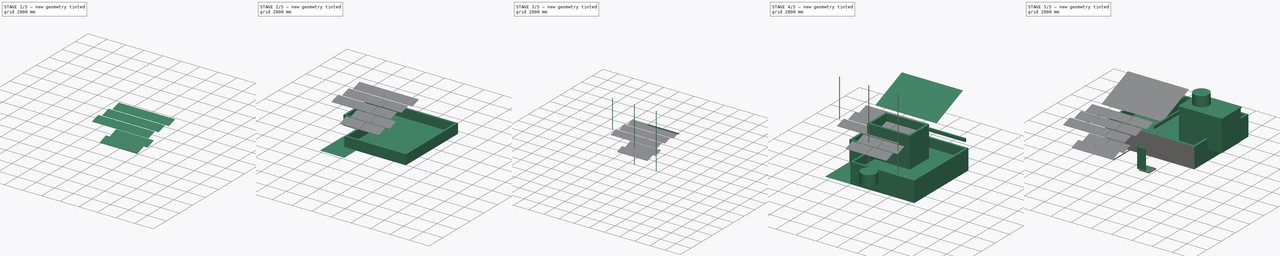
[diagram: build sequence overview — one tinted view per stage of 5, left to right]
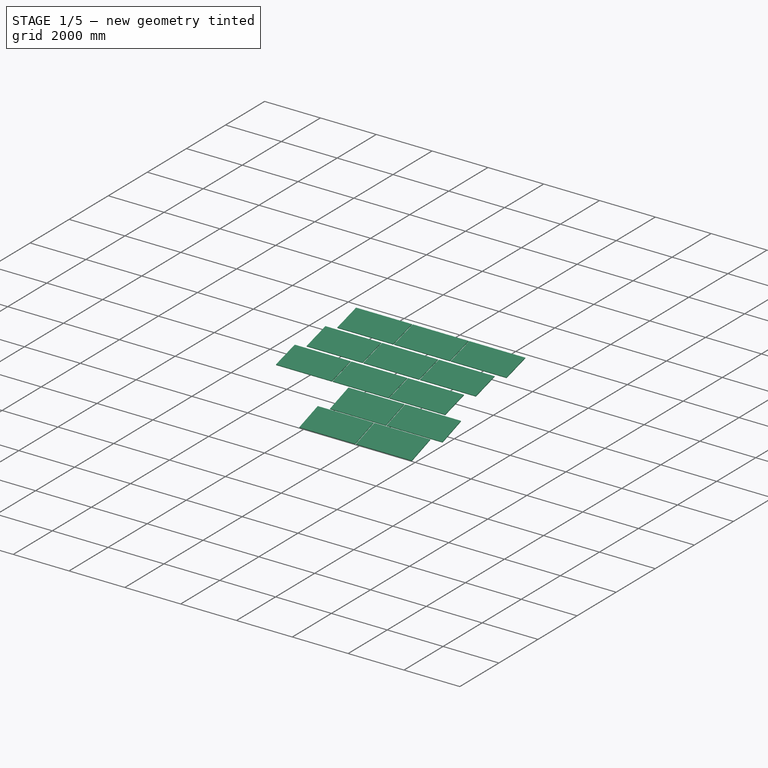
[diagram: stage 1 of 5 — iso view after this stage's code; geometry added in this stage tinted green]
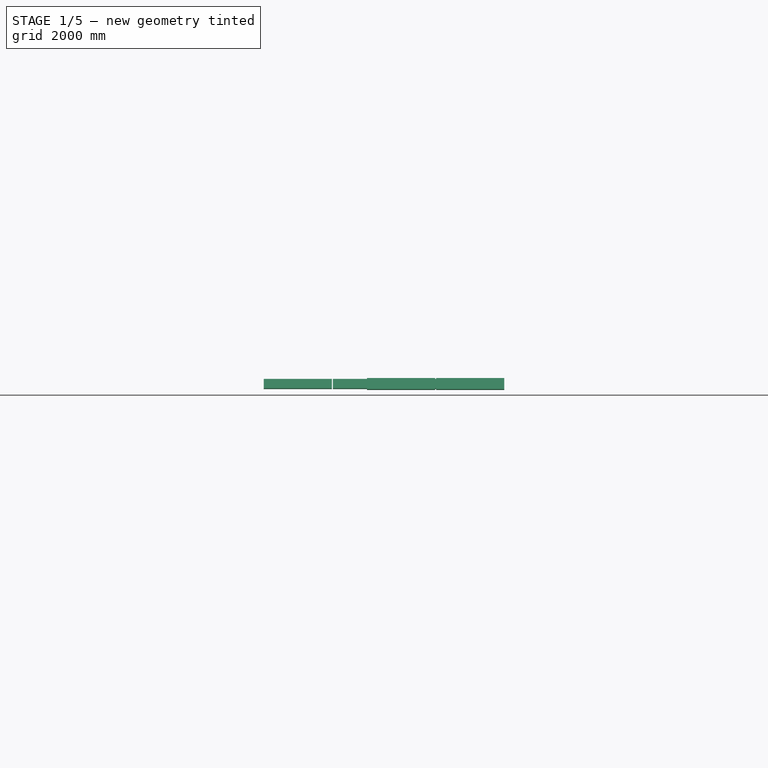
[diagram: stage 1 of 5 — front view after this stage's code; geometry added in this stage tinted green]
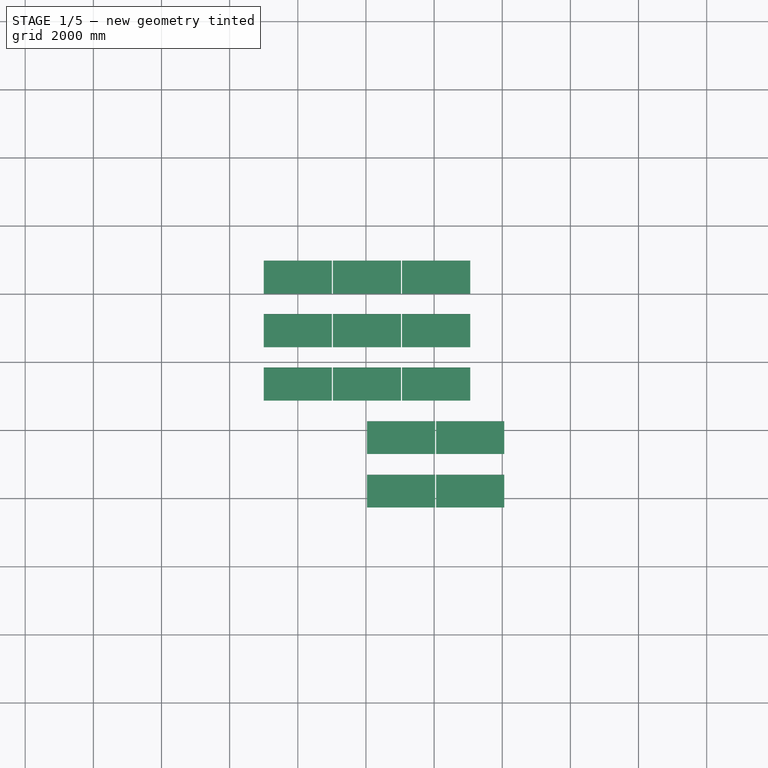
[diagram: stage 1 of 5 — top view after this stage's code; geometry added in this stage tinted green]
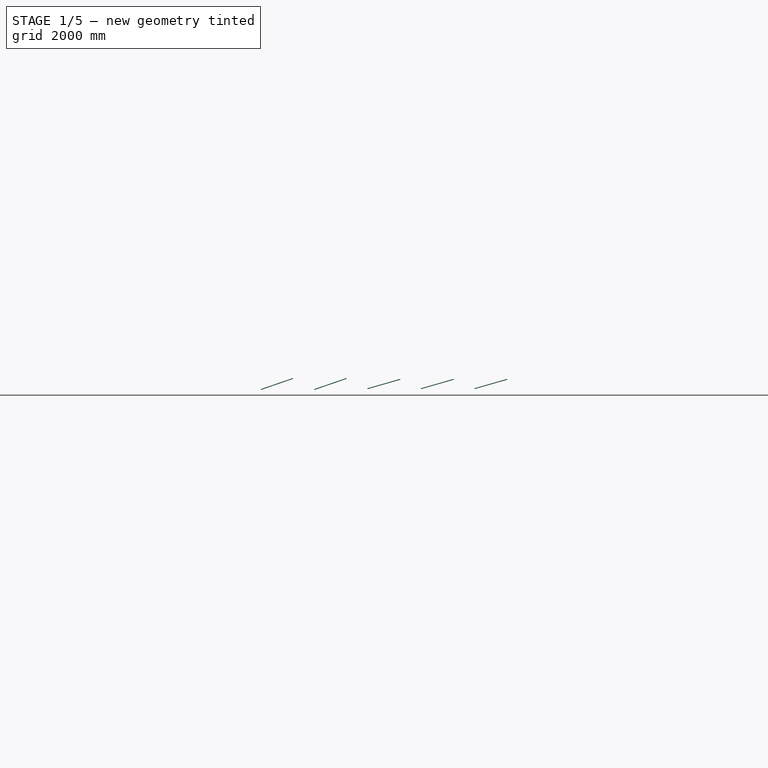
[diagram: stage 1 of 5 — right view after this stage's code; geometry added in this stage tinted green]
FCSTD DOCUMENT  (FreeCAD 0.18R16131 (Git))
Label: rowpanels
License: All rights reserved
LicenseURL: http://en.wikipedia.org/wiki/All_rights_reserved
objects: Part::FeaturePython×20, Sketcher::SketchObject×13, Part::Extrusion×3, App::GeometryPython×2, Part::Mirroring×1
note: 39 computed .brp shape members not serialized (recipe doc carries the construction recipe); baked Part::Feature solids carry a one-line shape summary decoded from their .brp

FEATURE [Sketcher::SketchObject] Sketch008
  ExternalGeometry = -> [Structure004]
  MapMode = 5
  Placement = pos=(0,0,1930) rot=(0,0,1;0rad)
  Support = -> [Structure004]
  sketch-geometry (12):
    g0: LineSegment StartX=100 StartY=7300 StartZ=0 EndX=140 EndY=7300 EndZ=0
    g1: LineSegment StartX=140 StartY=7300 StartZ=0 EndX=140 EndY=3530 EndZ=0
    g2: LineSegment StartX=140 StartY=3530 StartZ=0 EndX=100 EndY=3530 EndZ=0
    g3: LineSegment StartX=100 StartY=3530 StartZ=0 EndX=100 EndY=7300 EndZ=0
    g4: LineSegment StartX=2980 StartY=7300 StartZ=0 EndX=3020 EndY=7300 EndZ=0
    g5: LineSegment StartX=3020 StartY=7300 StartZ=0 EndX=3020 EndY=100 EndZ=0
    g6: LineSegment StartX=3020 StartY=100 StartZ=0 EndX=2980 EndY=100 EndZ=0
    g7: LineSegment StartX=2980 StartY=100 StartZ=0 EndX=2980 EndY=7300 EndZ=0
    g8: LineSegment StartX=5900 StartY=7300 StartZ=0 EndX=5860 EndY=7300 EndZ=0
    g9: LineSegment StartX=5860 StartY=7300 StartZ=0 EndX=5860 EndY=100 EndZ=0
    g10: LineSegment StartX=5860 StartY=100 StartZ=0 EndX=5900 EndY=100 EndZ=0
    g11: LineSegment StartX=5900 StartY=100 StartZ=0 EndX=5900 EndY=7300 EndZ=0
  constraints (30):
    c: Coincident(g0,g1)
    c: Coincident(g1,g2)
    c: Coincident(g2,g3)
    c: Coincident(g3,g0)
    c: Horizontal(g0)
    c: Horizontal(g2)
    c: Vertical(g1)
    c: Vertical(g3)
    c: Coincident(g0,g-9)
    c: Coincident(g1,g-10)
    c: Coincident(g4,g5)
    c: Coincident(g5,g6)
    c: Coincident(g6,g7)
    c: Coincident(g7,g4)
    c: Horizontal(g4)
    c: Horizontal(g6)
    c: Vertical(g5)
    c: Vertical(g7)
    c: Coincident(g-5,g4)
    c: Coincident(g-6,g5)
    c: Coincident(g8,g9)
    c: Coincident(g9,g10)
    c: Coincident(g10,g11)
    c: Coincident(g11,g8)
    c: Horizontal(g8)
    c: Horizontal(g10)
    c: Vertical(g9)
    c: Vertical(g11)
    c: Coincident(g8,g-8)
    c: Coincident(g10,g-7)
FEATURE [Part::FeaturePython] Panel  # Arch/BIM object (typed FeaturePython)
  Area = 2e+06
  FaceMaker = 0
  HorizontalArea = 0
  IfcRole = 99
  Length = 2000
  MoveWithHost = false
  Normal = (0,0,0)
  PerimeterLength = 0
  Placement = pos=(4060,6500,2250) rot=(1,0,0;0.279253rad)
  Sheets = 1
  Thickness = 25
  VerticalArea = 0
  WaveBottom = false
  WaveDirection = 0
  WaveHeight = 0
  WaveLength = 0
  WaveOffset = 0
  WaveType = 0
  Width = 1000
FEATURE [Part::FeaturePython] Panel001  # Arch/BIM object (typed FeaturePython)
  Area = 2e+06
  FaceMaker = 0
  HorizontalArea = 0
  IfcRole = 99
  Length = 2000
  MoveWithHost = false
  Normal = (0,0,0)
  PerimeterLength = 0
  Placement = pos=(5060,1790,2250) rot=(1,0,0;0.331613rad)
  Sheets = 1
  Thickness = 25
  VerticalArea = 0
  WaveBottom = false
  WaveDirection = 0
  WaveHeight = 0
  WaveLength = 0
  WaveOffset = 0
  WaveType = 0
  Width = 1000
FEATURE [Part::FeaturePython] Array002  label="2x2 Panel"  # Draft array (typed FeaturePython)
  Angle = 360
  ArrayType = 0
  Axis = (0,0,1)
  Base = -> Panel001
  Center = (0,0,0)
  Fuse = false
  IntervalAxis = (0,0,0)
  IntervalX = (-2030,0,0)
  IntervalY = (0,-1570,0)
  IntervalZ = (0,0,1)
  NumberPolar = 1
  NumberX = 2
  NumberY = 2
  NumberZ = 1
FEATURE [Part::FeaturePython] Array  label="3x3 Panel"  # Draft array (typed FeaturePython)
  Angle = 360
  ArrayType = 0
  Axis = (0,0,1)
  Base = -> Panel
  Center = (0,0,0)
  Fuse = false
  IntervalAxis = (0,0,0)
  IntervalX = (-2030,0,0)
  IntervalY = (0,-1570,0)
  IntervalZ = (0,0,1)
  NumberPolar = 1
  NumberX = 3
  NumberY = 3
  NumberZ = 1
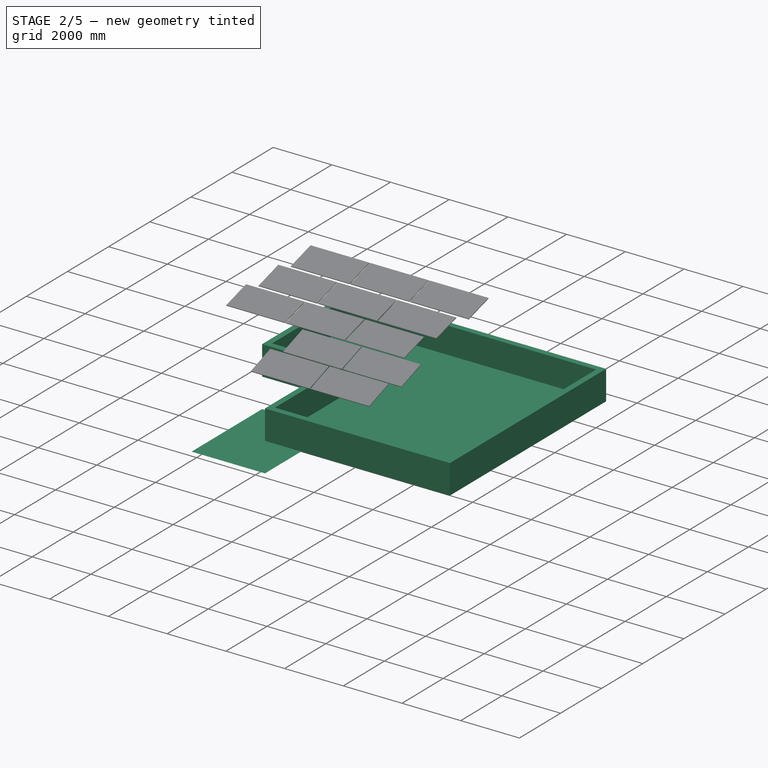
[diagram: stage 2 of 5 — iso view after this stage's code; geometry added in this stage tinted green]
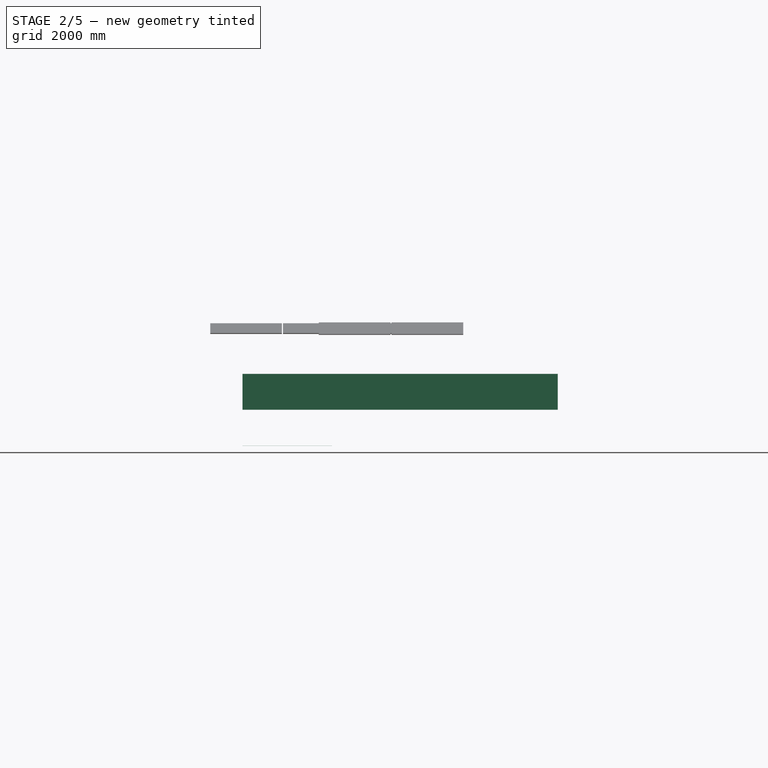
[diagram: stage 2 of 5 — front view after this stage's code; geometry added in this stage tinted green]
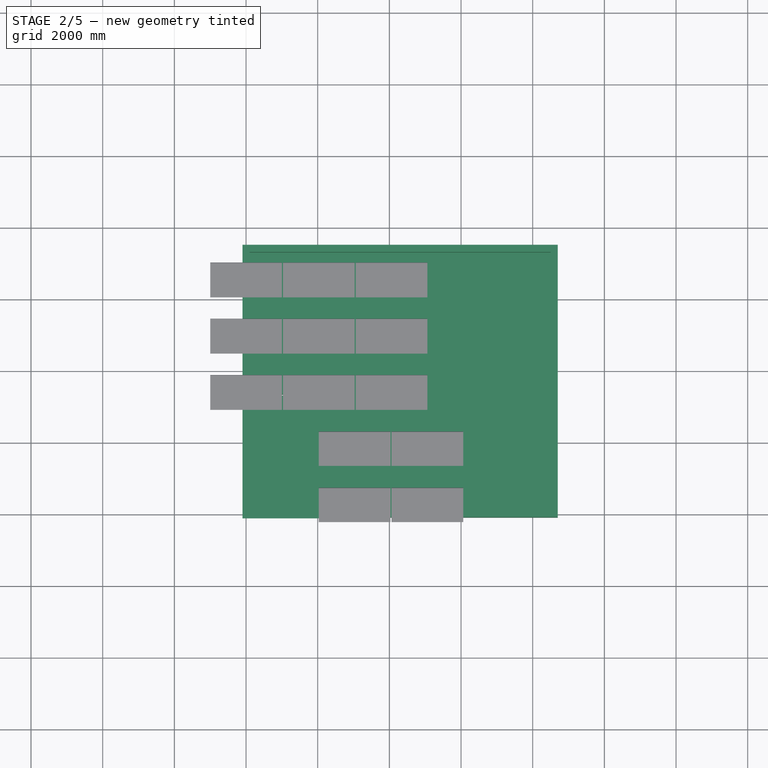
[diagram: stage 2 of 5 — top view after this stage's code; geometry added in this stage tinted green]
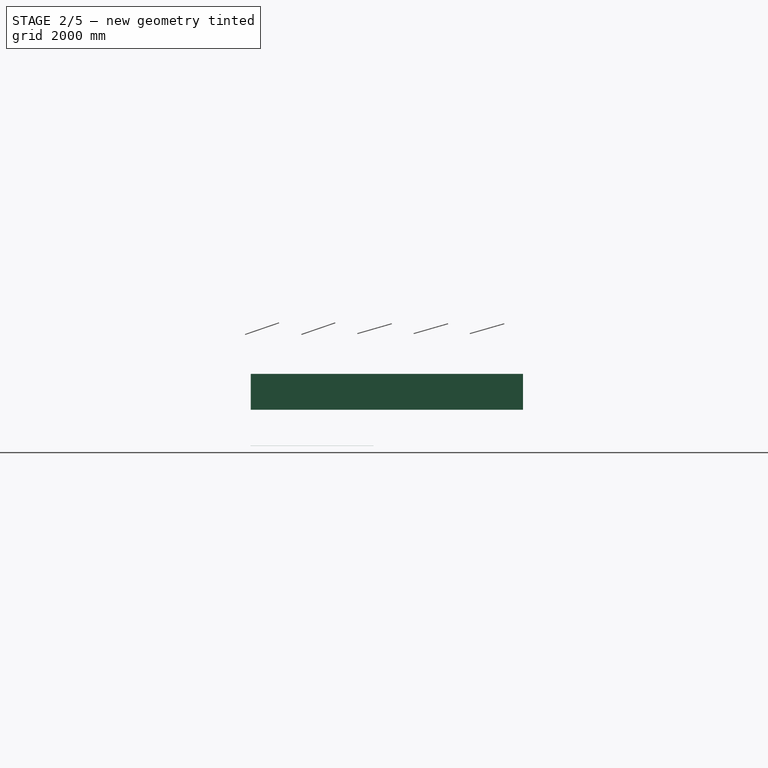
[diagram: stage 2 of 5 — right view after this stage's code; geometry added in this stage tinted green]
FEATURE [Sketcher::SketchObject] Sketch
  MapMode = 2
  Support = -> [Sketch]
  sketch-geometry (22):
    g0: LineSegment [constr] StartX=0 StartY=0 StartZ=0 EndX=8600 EndY=0 EndZ=0
    g1: LineSegment [constr] StartX=8600 StartY=0 StartZ=0 EndX=8600 EndY=7400 EndZ=0
    g2: LineSegment [constr] StartX=8600 StartY=7400 StartZ=0 EndX=0 EndY=7400 EndZ=0
    g3: LineSegment [constr] StartX=0 StartY=7400 StartZ=0 EndX=0 EndY=0 EndZ=0
    g4: LineSegment [constr] StartX=0 StartY=0 StartZ=0 EndX=2500 EndY=0 EndZ=0
    g5: LineSegment [constr] StartX=2500 StartY=0 StartZ=0 EndX=2500 EndY=3430 EndZ=0
    g6: LineSegment [constr] StartX=2500 StartY=3430 StartZ=0 EndX=0 EndY=3430 EndZ=0
    g7: LineSegment [constr] StartX=0 StartY=3430 StartZ=0 EndX=0 EndY=0 EndZ=0
    g8: LineSegment [constr] StartX=6100 StartY=5680 StartZ=0 EndX=10701.7 EndY=5680 EndZ=0
    g9: LineSegment [constr] StartX=10701.7 StartY=5680 StartZ=0 EndX=10701.7 EndY=3180 EndZ=0
    g10: LineSegment [constr] StartX=10701.7 StartY=3180 StartZ=0 EndX=6100 EndY=3180 EndZ=0
    g11: LineSegment [constr] StartX=6100 StartY=3180 StartZ=0 EndX=6100 EndY=5680 EndZ=0
    g12: GeomPoint X=8600 Y=5680 Z=0
    g13: GeomPoint X=8600 Y=3180 Z=0
    g14: LineSegment StartX=8600 StartY=5680 StartZ=0 EndX=8600 EndY=7400 EndZ=0
    g15: LineSegment StartX=8600 StartY=7400 StartZ=0 EndX=0 EndY=7400 EndZ=0
    g16: LineSegment StartX=0 StartY=7400 StartZ=0 EndX=0 EndY=3430 EndZ=0
    g17: LineSegment StartX=0 StartY=3430 StartZ=0 EndX=2500 EndY=3430 EndZ=0
    g18: LineSegment StartX=2500 StartY=3430 StartZ=0 EndX=2500 EndY=0 EndZ=0
    g19: LineSegment StartX=2500 StartY=0 StartZ=0 EndX=8600 EndY=0 EndZ=0
    g20: LineSegment StartX=8600 StartY=0 StartZ=0 EndX=8600 EndY=3180 EndZ=0
    g21: LineSegment StartX=8600 StartY=3180 StartZ=0 EndX=8600 EndY=5680 EndZ=0
  constraints (52):
    c: Coincident(g0,g1)
    c: Coincident(g1,g2)
    c: Coincident(g2,g3)
    c: Coincident(g3,g0)
    c: Horizontal(g0)
    c: Horizontal(g2)
    c: Vertical(g1)
    c: Vertical(g3)
    c: Distance(g1) = 7400
    c: Distance(g2) = 8600
    c: PointOnObject(g0,g-1)
    c: Coincident(g4,g5)
    c: Coincident(g5,g6)
    c: Coincident(g6,g7)
    c: Coincident(g7,g4)
    c: Horizontal(g4)
    c: Horizontal(g6)
    c: Vertical(g5)
    c: Vertical(g7)
    c: Distance(g6) = 2500
    c: Distance(g5) = 3430
    c: PointOnObject(g6,g3)
    c: PointOnObject(g4,g0)
    c: Coincident(g8,g9)
    c: Coincident(g9,g10)
    c: Coincident(g10,g11)
    c: Coincident(g11,g8)
    c: Horizontal(g8)
    c: Horizontal(g10)
    c: Vertical(g9)
    c: Vertical(g11)
    c: Distance(g11) = 2500
    c: PointOnObject(g-1,g3)
    c: DistanceX(g8,g1) = 2500
    c: DistanceY(g8,g1) = 1720
    c: PointOnObject(g12,g8)
    c: PointOnObject(g13,g10)
    c: PointOnObject(g12,g1)
    c: PointOnObject(g13,g1)
    c: Coincident(g14,g15)
    c: Coincident(g15,g16)
    c: Coincident(g16,g17)
    c: Coincident(g17,g18)
    c: Coincident(g18,g19)
    c: Coincident(g19,g20)
    c: Coincident(g13,g20)
    c: Coincident(g1,g14)
    c: Coincident(g15,g2)
    c: Coincident(g16,g6)
    c: Coincident(g17,g5)
    c: Coincident(g18,g4)
    c: Coincident(g19,g0)
FEATURE [Part::FeaturePython] Wall  label="Perapet"  # Arch/BIM object (typed FeaturePython)
  Align = 2
  Base = -> Sketch
  BlockHeight = 0
  BlockLength = 0
  CountBroken = 0
  CountEntire = 0
  Face = 0
  Height = 1000
  HorizontalArea = 6400000
  IfcRole = 156
  Joint = 0
  Length = 32000
  MakeBlocks = false
  MoveWithHost = false
  Normal = (0,0,0)
  OffsetFirst = 0
  OffsetSecond = 0
  PerimeterLength = 32800
  VerticalArea = 64000000
  Width = 200
FEATURE [Part::FeaturePython] Structure  label="Floor"  # Arch/BIM object (typed FeaturePython)
  Base = -> Sketch
  FaceMaker = 0
  Height = 100
  HorizontalArea = 54065000
  IfcRole = 0
  Length = 0
  MoveWithHost = false
  Nodes = (2) [(4774.96,4009.11,0),(4774.96,4009.11,100)]
  NodesOffset = 0
  Normal = (0,0,0)
  PerimeterLength = 32000
  VerticalArea = 3600000
  Width = 100
FEATURE [Part::FeaturePython] Wall002  label="Boundry of Floor"  # Arch/BIM object (typed FeaturePython)
  Align = 2
  Base = -> Sketch
  BlockHeight = 0
  BlockLength = 0
  CountBroken = 0
  CountEntire = 0
  Face = 0
  Height = -1000
  HorizontalArea = 6400000
  IfcRole = 156
  Joint = 0
  Length = 32000
  MakeBlocks = false
  MoveWithHost = false
  Normal = (0,0,0)
  OffsetFirst = 0
  OffsetSecond = 0
  PerimeterLength = 32800
  VerticalArea = 64000000
  Width = 200
  expr: Height = -1m
FEATURE [Sketcher::SketchObject] Sketch006
  ExternalGeometry = -> [Wall002]
  MapMode = 5
  Placement = pos=(0,0,-1000) rot=(1,0,0;3.14159rad)
  Support = -> [Wall002]
  sketch-geometry (4):
    g0: LineSegment StartX=2400 StartY=100 StartZ=0 EndX=-100 EndY=100 EndZ=0
    g1: LineSegment StartX=-100 StartY=100 StartZ=0 EndX=-100 EndY=-3330 EndZ=0
    g2: LineSegment StartX=-100 StartY=-3330 StartZ=0 EndX=2400 EndY=-3330 EndZ=0
    g3: LineSegment StartX=2400 StartY=-3330 StartZ=0 EndX=2400 EndY=100 EndZ=0
  constraints (8):
    c: Coincident(g0,g1)
    c: Coincident(g1,g2)
    c: Coincident(g2,g3)
    c: Coincident(g3,g0)
    c: Horizontal(g0)
    c: Horizontal(g2)
    c: Vertical(g1)
    c: Vertical(g3)
FEATURE [Part::FeaturePython] Structure003  label="1st Floor Balcony Ceiling"  # Arch/BIM object (typed FeaturePython)
  Base = -> Sketch006
  FaceMaker = 0
  Height = -500
  HorizontalArea = 8575000
  IfcRole = 0
  Length = 0
  MoveWithHost = false
  Nodes = (2) [(1150,1615,-1000),(1150,1615,-1001)]
  NodesOffset = 0
  Normal = (0,0,0)
  PerimeterLength = 11860
  VerticalArea = 11860
  Width = 100
  expr: Height = -0.5m
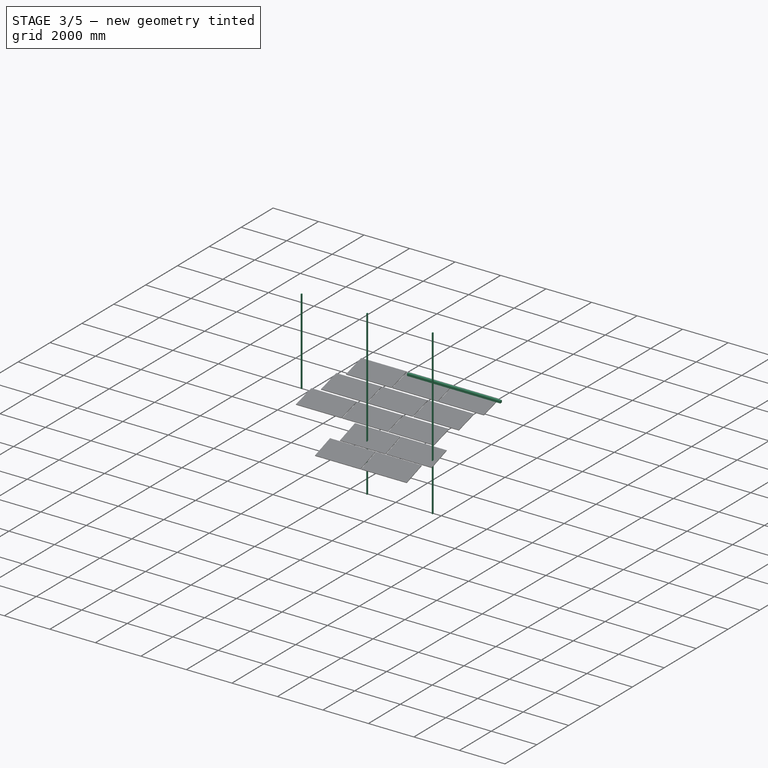
[diagram: stage 3 of 5 — iso view after this stage's code; geometry added in this stage tinted green]
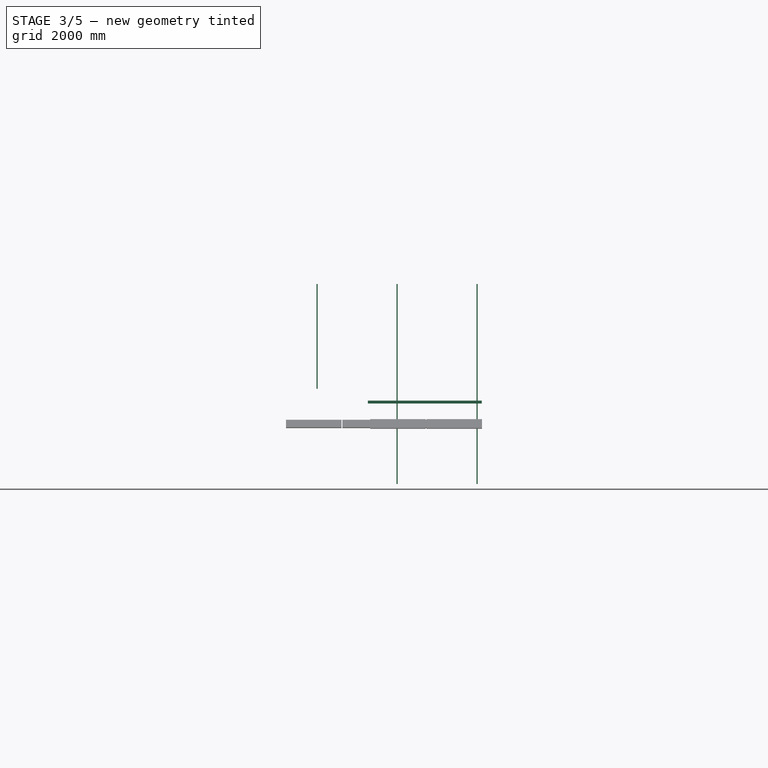
[diagram: stage 3 of 5 — front view after this stage's code; geometry added in this stage tinted green]
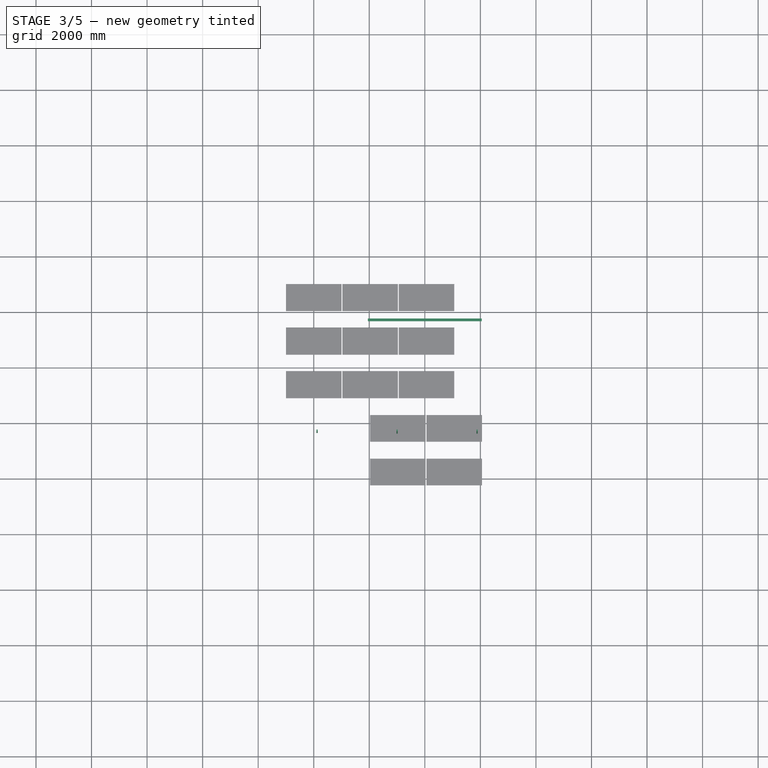
[diagram: stage 3 of 5 — top view after this stage's code; geometry added in this stage tinted green]
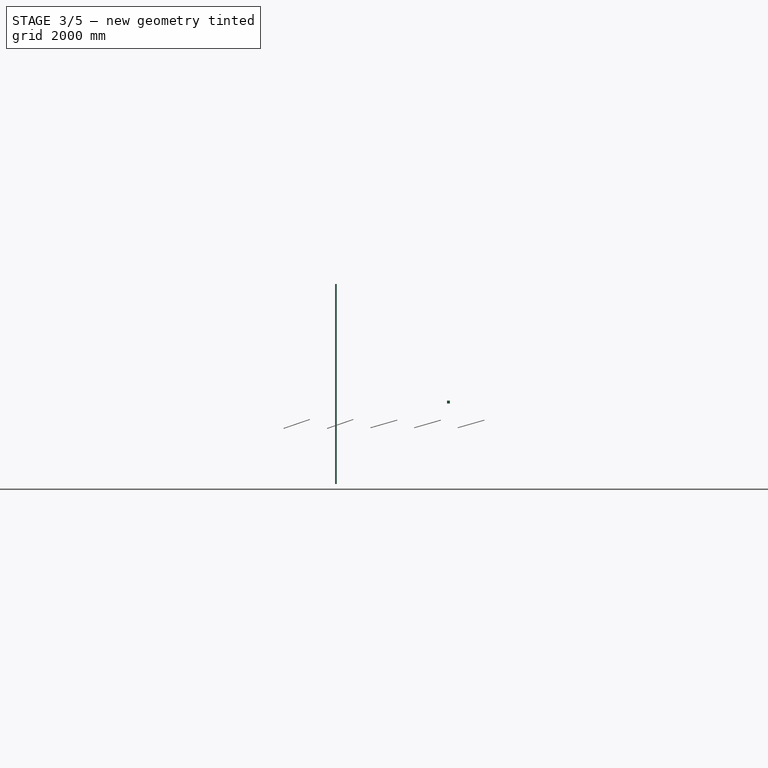
[diagram: stage 3 of 5 — right view after this stage's code; geometry added in this stage tinted green]
FEATURE [Sketcher::SketchObject] Sketch001
  ExternalGeometry = -> [Wall]
  MapMode = 5
  Placement = pos=(2500,0,0) rot=(0.57735,-0.57735,-0.57735;2.0944rad)
  Support = -> [Structure]
  sketch-geometry (4):
    g0: LineSegment StartX=-5800 StartY=-720 StartZ=0 EndX=-9800 EndY=-720 EndZ=0
    g1: LineSegment StartX=-9800 StartY=-720 StartZ=0 EndX=-9800 EndY=1780 EndZ=0
    g2: LineSegment StartX=-9800 StartY=1780 StartZ=0 EndX=-5800 EndY=1780 EndZ=0
    g3: LineSegment StartX=-5800 StartY=1780 StartZ=0 EndX=-5800 EndY=-720 EndZ=0
  constraints (12):
    c: Coincident(g0,g1)
    c: Coincident(g1,g2)
    c: Coincident(g2,g3)
    c: Coincident(g3,g0)
    c: Horizontal(g0)
    c: Horizontal(g2)
    c: Vertical(g1)
    c: Vertical(g3)
    c: DistanceX(g0,g-5) = 2500
    c: DistanceY(g0,g-5) = 1720
    c: Distance(g1) = 2500
    c: Distance(g2) = 4000
FEATURE [Part::FeaturePython] Wall001  label="Staircase Cabin"  # Arch/BIM object (typed FeaturePython)
  Align = 2
  Base = -> Sketch001
  BlockHeight = 0
  BlockLength = 0
  CountBroken = 0
  CountEntire = 0
  Face = 0
  Height = 3000
  HorizontalArea = 2.6e+06
  IfcRole = 156
  Joint = 0
  Length = 13000
  MakeBlocks = false
  MoveWithHost = false
  Normal = (0,0,0)
  OffsetFirst = 0
  OffsetSecond = 0
  PerimeterLength = 13800
  VerticalArea = 78000000
  Width = 200
FEATURE [Sketcher::SketchObject] Sketch007
  ExternalGeometry = -> [Structure003,Wall,Wall001]
  MapMode = 5
  Placement = pos=(0,0,100) rot=(0,0,1;0rad)
  Support = -> [Structure]
  sketch-geometry (44):
    g0: LineSegment StartX=100 StartY=3530 StartZ=0 EndX=140 EndY=3530 EndZ=0
    g1: LineSegment StartX=140 StartY=3530 StartZ=0 EndX=140 EndY=3590 EndZ=0
    g2: LineSegment StartX=140 StartY=3590 StartZ=0 EndX=100 EndY=3590 EndZ=0
    g3: LineSegment StartX=100 StartY=3590 StartZ=0 EndX=100 EndY=3530 EndZ=0
    g4: LineSegment StartX=5900 StartY=5680 StartZ=0 EndX=5860 EndY=5680 EndZ=0
    g5: LineSegment StartX=5860 StartY=5680 StartZ=0 EndX=5860 EndY=5620 EndZ=0
    g6: LineSegment StartX=5860 StartY=5620 StartZ=0 EndX=5900 EndY=5620 EndZ=0
    g7: LineSegment StartX=5900 StartY=5620 StartZ=0 EndX=5900 EndY=5680 EndZ=0
    g8: LineSegment StartX=5860 StartY=3040 StartZ=0 EndX=5900 EndY=3040 EndZ=0
    g9: LineSegment StartX=5900 StartY=3040 StartZ=0 EndX=5900 EndY=2980 EndZ=0
    g10: LineSegment StartX=5900 StartY=2980 StartZ=0 EndX=5860 EndY=2980 EndZ=0
    g11: LineSegment StartX=5860 StartY=2980 StartZ=0 EndX=5860 EndY=3040 EndZ=0
    g12: LineSegment StartX=100 StartY=5680 StartZ=0 EndX=140 EndY=5680 EndZ=0
    g13: LineSegment StartX=140 StartY=5680 StartZ=0 EndX=140 EndY=5620 EndZ=0
    g14: LineSegment StartX=140 StartY=5620 StartZ=0 EndX=100 EndY=5620 EndZ=0
    g15: LineSegment StartX=100 StartY=5620 StartZ=0 EndX=100 EndY=5680 EndZ=0
    g16: LineSegment StartX=100 StartY=7300 StartZ=0 EndX=140 EndY=7300 EndZ=0
    g17: LineSegment StartX=140 StartY=7300 StartZ=0 EndX=140 EndY=7240 EndZ=0
    g18: LineSegment StartX=140 StartY=7240 StartZ=0 EndX=100 EndY=7240 EndZ=0
    g19: LineSegment StartX=100 StartY=7240 StartZ=0 EndX=100 EndY=7300 EndZ=0
    g20: LineSegment StartX=5900 StartY=7300 StartZ=0 EndX=5860 EndY=7300 EndZ=0
    g21: LineSegment StartX=5860 StartY=7300 StartZ=0 EndX=5860 EndY=7240 EndZ=0
    g22: LineSegment StartX=5860 StartY=7240 StartZ=0 EndX=5900 EndY=7240 EndZ=0
    g23: LineSegment StartX=5900 StartY=7240 StartZ=0 EndX=5900 EndY=7300 EndZ=0
    g24: LineSegment StartX=2980 StartY=7300 StartZ=0 EndX=3020 EndY=7300 EndZ=0
    g25: LineSegment StartX=3020 StartY=7300 StartZ=0 EndX=3020 EndY=7240 EndZ=0
    g26: LineSegment StartX=3020 StartY=7240 StartZ=0 EndX=2980 EndY=7240 EndZ=0
    g27: LineSegment StartX=2980 StartY=7240 StartZ=0 EndX=2980 EndY=7300 EndZ=0
    g28: LineSegment [constr] StartX=140 StartY=5680 StartZ=0 EndX=5860 EndY=5680 EndZ=0
    g29: GeomPoint X=3000 Y=5680 Z=0
    g30: LineSegment [constr] StartX=3000 StartY=8348.67 StartZ=0 EndX=3000 EndY=-460.179 EndZ=0
    g31: LineSegment [constr] StartX=2600 StartY=3530 StartZ=0 EndX=3216.47 EndY=3530 EndZ=0
    g32: LineSegment StartX=2980 StartY=3010 StartZ=0 EndX=3020 EndY=3010 EndZ=0
    g33: LineSegment StartX=3020 StartY=3010 StartZ=0 EndX=3020 EndY=2950 EndZ=0
    g34: LineSegment StartX=3020 StartY=2950 StartZ=0 EndX=2980 EndY=2950 EndZ=0
    g35: LineSegment StartX=2980 StartY=2950 StartZ=0 EndX=2980 EndY=3010 EndZ=0
    g36: LineSegment StartX=2980 StartY=160 StartZ=0 EndX=3020 EndY=160 EndZ=0
    g37: LineSegment StartX=3020 StartY=160 StartZ=0 EndX=3020 EndY=100 EndZ=0
    g38: LineSegment StartX=3020 StartY=100 StartZ=0 EndX=2980 EndY=100 EndZ=0
    g39: LineSegment StartX=2980 StartY=100 StartZ=0 EndX=2980 EndY=160 EndZ=0
    g40: LineSegment StartX=5860 StartY=160 StartZ=0 EndX=5900 EndY=160 EndZ=0
    g41: LineSegment StartX=5900 StartY=160 StartZ=0 EndX=5900 EndY=100 EndZ=0
    g42: LineSegment StartX=5900 StartY=100 StartZ=0 EndX=5860 EndY=100 EndZ=0
    g43: LineSegment StartX=5860 StartY=100 StartZ=0 EndX=5860 EndY=160 EndZ=0
  constraints (118):
    c: Coincident(g0,g1)
    c: Coincident(g1,g2)
    c: Coincident(g2,g3)
    c: Coincident(g3,g0)
    c: Horizontal(g0)
    c: Horizontal(g2)
    c: Vertical(g1)
    c: Vertical(g3)
    c: Distance(g1) = 60
    c: Distance(g2) = 40
    c: Coincident(g-6,g0)
    c: Coincident(g4,g5)
    c: Coincident(g5,g6)
    c: Coincident(g6,g7)
    c: Coincident(g7,g4)
    c: Horizontal(g4)
    c: Horizontal(g6)
    c: Vertical(g5)
    c: Vertical(g7)
    c: PointOnObject(g4,g-10)
    c: PointOnObject(g4,g-8)
    c: Coincident(g8,g9)
    c: Coincident(g9,g10)
    c: Coincident(g10,g11)
    c: Coincident(g11,g8)
    c: Horizontal(g8)
    c: Horizontal(g10)
    c: Vertical(g9)
    c: Vertical(g11)
    c: PointOnObject(g9,g-9)
    c: PointOnObject(g9,g-8)
    c: Coincident(g12,g13)
    c: Coincident(g13,g14)
    c: Coincident(g14,g15)
    c: Coincident(g15,g12)
    c: Horizontal(g12)
    c: Horizontal(g14)
    c: Vertical(g13)
    c: Vertical(g15)
    c: Equal(g13,g1)
    c: Equal(g0,g14)
    c: Coincident(g-10,g12)
    c: Coincident(g16,g17)
    c: Coincident(g17,g18)
    c: Coincident(g18,g19)
    c: Coincident(g19,g16)
    c: Horizontal(g16)
    c: Horizontal(g18)
    c: Vertical(g17)
    c: Vertical(g19)
    c: Equal(g18,g12)
    c: Equal(g17,g13)
    c: Coincident(g16,g-11)
    c: Coincident(g20,g21)
    c: Coincident(g21,g22)
    c: Coincident(g22,g23)
    c: Coincident(g23,g20)
    c: Horizontal(g20)
    c: Horizontal(g22)
    c: Vertical(g21)
    c: Vertical(g23)
    c: Equal(g21,g17)
    c: Equal(g20,g16)
    c: PointOnObject(g20,g-8)
    c: PointOnObject(g20,g-11)
    c: Coincident(g24,g25)
    c: Coincident(g25,g26)
    c: Coincident(g26,g27)
    c: Coincident(g27,g24)
    c: Horizontal(g24)
    c: Horizontal(g26)
    c: Vertical(g25)
    c: Vertical(g27)
    c: Equal(g27,g17)
    c: Equal(g26,g18)
    c: PointOnObject(g24,g-11)
    c: Coincident(g28,g4)
    c: Symmetric(g28,g4,g29)
    c: Coincident(g28,g12)
    c: PointOnObject(g29,g30)
    c: Symmetric(g26,g25,g30)
    c: Coincident(g31,g-6)
    c: Perpendicular(g30,g31)
    c: Coincident(g32,g33)
    c: Coincident(g33,g34)
    c: Coincident(g34,g35)
    c: Coincident(g35,g32)
    c: Horizontal(g34)
    c: Vertical(g33)
    c: Equal(g32,g2)
    c: Equal(g35,g1)
    c: Symmetric(g32,g32,g30)
    c: Symmetric(g32,g34,g-9)
    c: Coincident(g36,g37)
    c: Coincident(g37,g38)
    c: Coincident(g38,g39)
    c: Coincident(g39,g36)
    c: Horizontal(g38)
    c: Vertical(g37)
    c: Vertical(g39)
    c: PointOnObject(g38,g-7)
    c: Symmetric(g36,g36,g30)
    c: Equal(g36,g34)
    c: Equal(g33,g37)
    c: Coincident(g40,g41)
    c: Coincident(g41,g42)
    c: Coincident(g42,g43)
    c: Coincident(g43,g40)
    c: Horizontal(g40)
    c: Horizontal(g42)
    c: Vertical(g41)
    c: Vertical(g43)
    c: PointOnObject(g41,g-8)
    c: PointOnObject(g41,g-7)
    c: Equal(g43,g37)
    c: Equal(g40,g36)
    c: Equal(g5,g21)
    c: Equal(g22,g4)
FEATURE [Part::FeaturePython] Structure004  label="Vertical Members"  # Arch/BIM object (typed FeaturePython)
  Base = -> Sketch007
  FaceMaker = 0
  Height = 1830
  HorizontalArea = 9882.25
  IfcRole = 0
  Length = 0
  MoveWithHost = false
  Nodes = (40) [(100,3530,100),(140,3530,100),(140,3590,100),(100,3590,100),(5900,5680,100),(5860,5680,100),(5860,5620,100),(5900,5620,100),(5860,3040,100),+31 more]
  NodesOffset = 0
  Normal = (0,0,0)
  PerimeterLength = 200
  VerticalArea = 1.19703e+06
  Width = 100
FEATURE [Sketcher::SketchObject] Sketch002
  ExternalGeometry = -> [Wall001]
  MapMode = 5
  Placement = pos=(0,0,3100) rot=(0,0,1;0rad)
  Support = -> [Wall001]
  sketch-geometry (4):
    g0: LineSegment StartX=5850 StartY=2930 StartZ=0 EndX=10150 EndY=2930 EndZ=0
    g1: LineSegment StartX=10150 StartY=2930 StartZ=0 EndX=10150 EndY=5730 EndZ=0
    g2: LineSegment StartX=10150 StartY=5730 StartZ=0 EndX=5850 EndY=5730 EndZ=0
    g3: LineSegment StartX=5850 StartY=5730 StartZ=0 EndX=5850 EndY=2930 EndZ=0
  constraints (12):
    c: Coincident(g0,g1)
    c: Coincident(g1,g2)
    c: Coincident(g2,g3)
    c: Coincident(g3,g0)
    c: Horizontal(g0)
    c: Horizontal(g2)
    c: Vertical(g1)
    c: Vertical(g3)
    c: DistanceY(g-4,g2) = 50
    c: DistanceY(g0,g-6) = 50
    c: DistanceX(g2,g-4) = 50
    c: DistanceX(g-6,g0) = 50
FEATURE [Part::FeaturePython] Structure001  label="Cabin Terrace"  # Arch/BIM object (typed FeaturePython)
  Base = -> Sketch002
  FaceMaker = 0
  Height = 100
  HorizontalArea = 12040000
  IfcRole = 0
  Length = 0
  MoveWithHost = false
  Nodes = (2) [(8000,4330,3100),(8000,4330,3200)]
  NodesOffset = 0
  Normal = (0,0,0)
  PerimeterLength = 14200
  VerticalArea = 1420000
  Width = 100
FEATURE [Part::FeaturePython] Structure008  label="Structure002"  # Arch/BIM object (typed FeaturePython)
  Base = -> Sketch008
  FaceMaker = 0
  Height = 60
  HorizontalArea = 726800
  IfcRole = 0
  Length = 0
  MoveWithHost = false
  Nodes = (12) [(100,7300,1990),(140,7300,1990),(140,3530,1990),(100,3530,1990),(2980,7300,1990),(3020,7300,1990),(3020,100,1990),(2980,100,1990),(5900,7300,1990),+3 more]
  NodesOffset = 60
  Normal = (0,0,0)
  PerimeterLength = 0
  VerticalArea = 2194800
  Width = 100
  expr: Height = 60mm
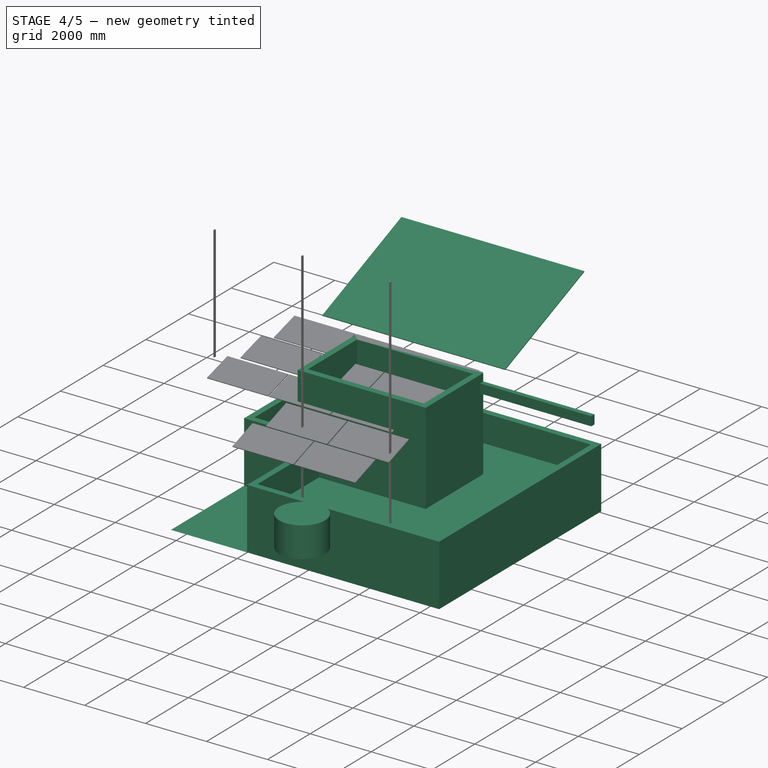
[diagram: stage 4 of 5 — iso view after this stage's code; geometry added in this stage tinted green]
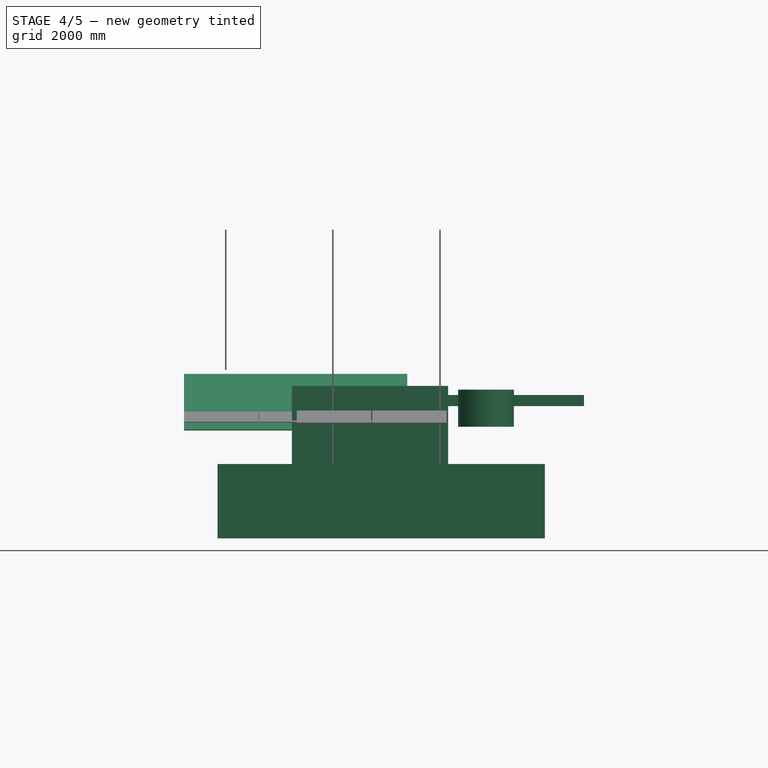
[diagram: stage 4 of 5 — front view after this stage's code; geometry added in this stage tinted green]
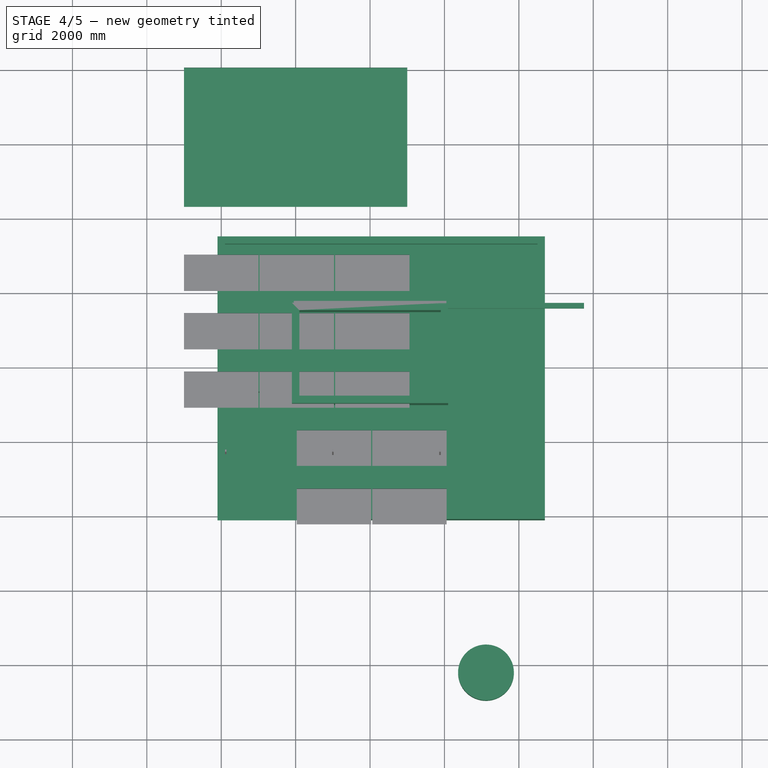
[diagram: stage 4 of 5 — top view after this stage's code; geometry added in this stage tinted green]
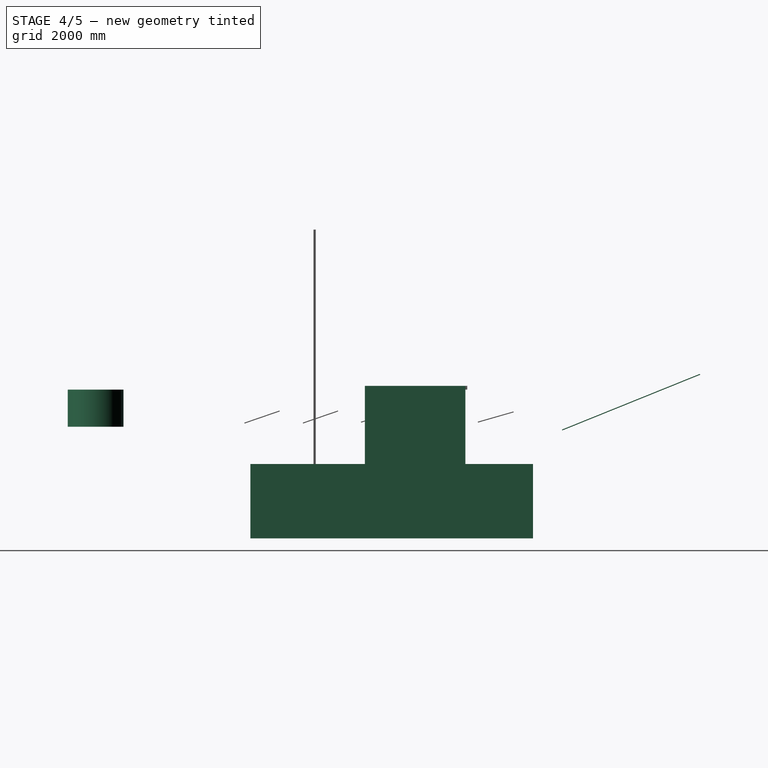
[diagram: stage 4 of 5 — right view after this stage's code; geometry added in this stage tinted green]
FEATURE [Sketcher::SketchObject] Sketch009
  MapMode = 5
  Placement = pos=(0,0,3200) rot=(0,0,1;0rad)
  Support = -> [Structure001]
  sketch-geometry (1):
    g0: Circle CenterX=7115.8 CenterY=4257.98 CenterZ=0 NormalX=0 NormalY=0 NormalZ=1 AngleXU=0 Radius=750
  constraints (1):
    c: Radius(g0) = 750
FEATURE [Part::Extrusion] Extrude  label="Tank"
  Base = -> Sketch009
  Dir = (0,0,1)
  DirMode = 2
  FaceMakerClass = Part::FaceMakerBullseye
  LengthFwd = 1000
  LengthRev = 0
  Solid = true
  Symmetric = false
FEATURE [Part::FeaturePython] Panel002  label="Neighbour Solar"  # Arch/BIM object (typed FeaturePython)
  Area = 24000000
  FaceMaker = 0
  HorizontalArea = 0
  IfcRole = 99
  Length = 6000
  MoveWithHost = false
  Normal = (0,0,0)
  PerimeterLength = 0
  Placement = pos=(2000,10140,2650) rot=(1,0,0;0.383972rad)
  Sheets = 1
  Thickness = 25
  VerticalArea = 0
  WaveBottom = false
  WaveDirection = 0
  WaveHeight = 0
  WaveLength = 0
  WaveOffset = 0
  WaveType = 0
  Width = 4000
FEATURE [Sketcher::SketchObject] Sketch011
  ExternalGeometry = -> [Wall001,Structure001]
  MapMode = 5
  Placement = pos=(0,5680,0) rot=(0,0.707107,0.707107;3.14159rad)
  Support = -> [Wall001]
  sketch-geometry (4):
    g0: LineSegment StartX=-5900 StartY=2853.24 StartZ=0 EndX=-6050 EndY=2853.24 EndZ=0
    g1: LineSegment StartX=-6050 StartY=2853.24 StartZ=0 EndX=-6050 EndY=2553.24 EndZ=0
    g2: LineSegment StartX=-6050 StartY=2553.24 StartZ=0 EndX=-5900 EndY=2553.24 EndZ=0
    g3: LineSegment StartX=-5900 StartY=2553.24 StartZ=0 EndX=-5900 EndY=2853.24 EndZ=0
  constraints (11):
    c: Coincident(g0,g1)
    c: Coincident(g1,g2)
    c: Coincident(g2,g3)
    c: Coincident(g3,g0)
    c: Horizontal(g0)
    c: Horizontal(g2)
    c: Vertical(g1)
    c: Vertical(g3)
    c: Distance(g0) = 150
    c: Distance(g1) = 300
    c: PointOnObject(g0,g-3)
FEATURE [Part::FeaturePython] Structure007  label="Structure001"  # Arch/BIM object (typed FeaturePython)
  Base = -> Sketch011
  FaceMaker = 0
  Height = 3650
  HorizontalArea = 547500
  IfcRole = 0
  Length = 3650
  MoveWithHost = false
  Nodes = (2) [(5975,5680,2703.24),(5975,5680,6353.24)]
  NodesOffset = 0
  Normal = (0,0,0)
  PerimeterLength = 7600
  VerticalArea = 2.28e+06
  Width = 3650
FEATURE [App::GeometryPython] BuildingPart001  label="Terrace"  # Arch/BIM object (typed FeaturePython)
  Area = 0
  BuildingType = 0
  Group = -> [Wall,Structure,Wall001,Structure001,Wall002,Structure003,Sketch007,Extrude,Structure008]
  Height = 0
  IfcRole = 11
  LevelOffset = 0
FEATURE [Part::FeaturePython] Component  label="Terrace001"  # Arch/BIM object (typed FeaturePython)
  CloneOf = -> BuildingPart001
  HorizontalArea = 0
  IfcRole = 0
  MoveWithHost = false
  PerimeterLength = 0
  VerticalArea = 0
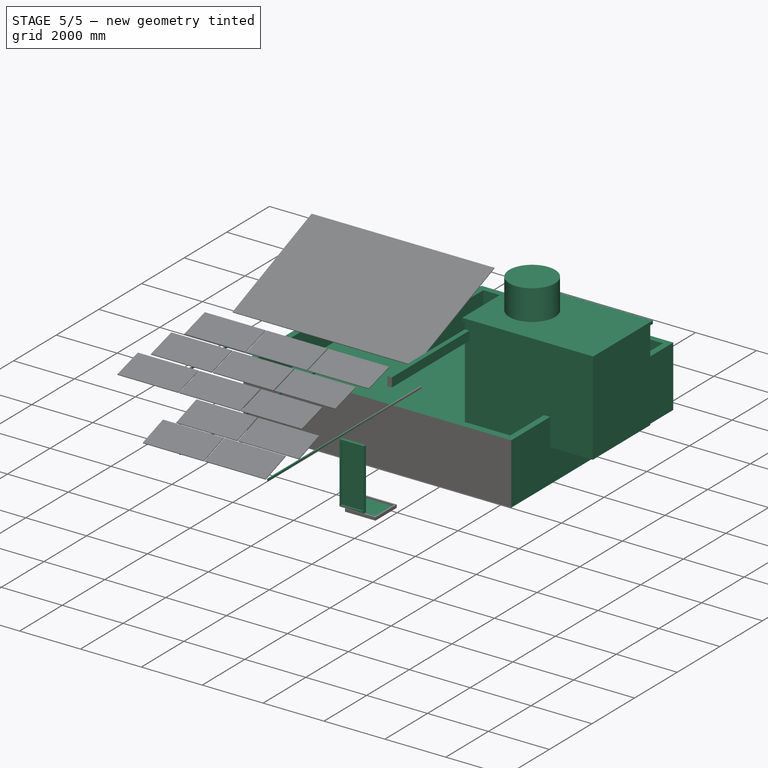
[diagram: stage 5 of 5 — iso view after this stage's code; geometry added in this stage tinted green]
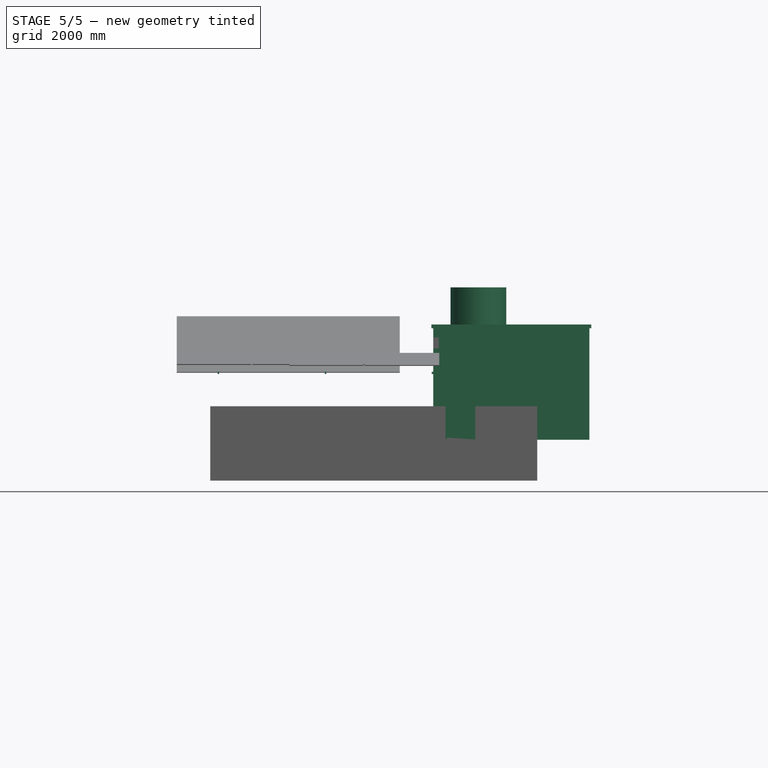
[diagram: stage 5 of 5 — front view after this stage's code; geometry added in this stage tinted green]
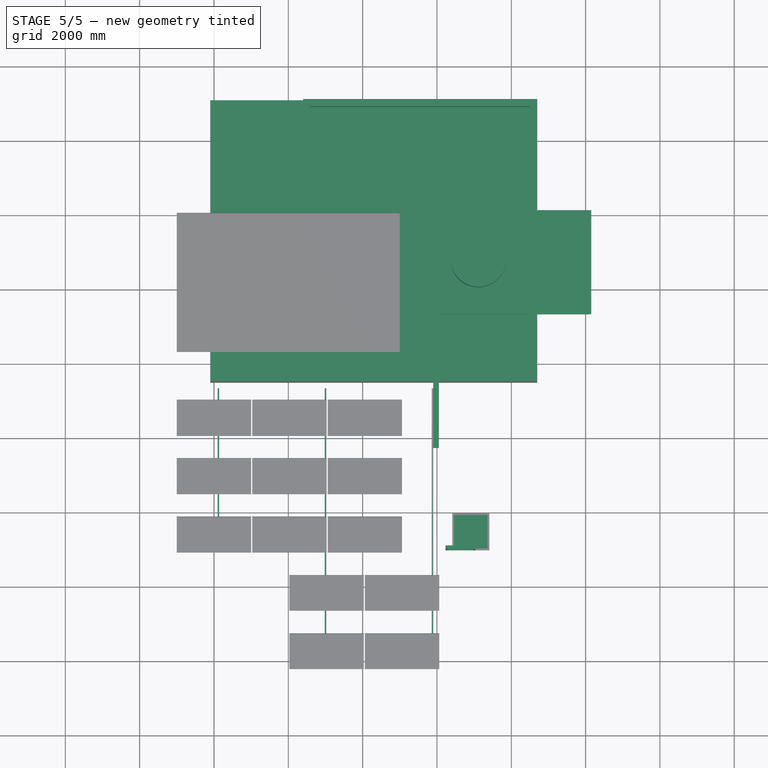
[diagram: stage 5 of 5 — top view after this stage's code; geometry added in this stage tinted green]
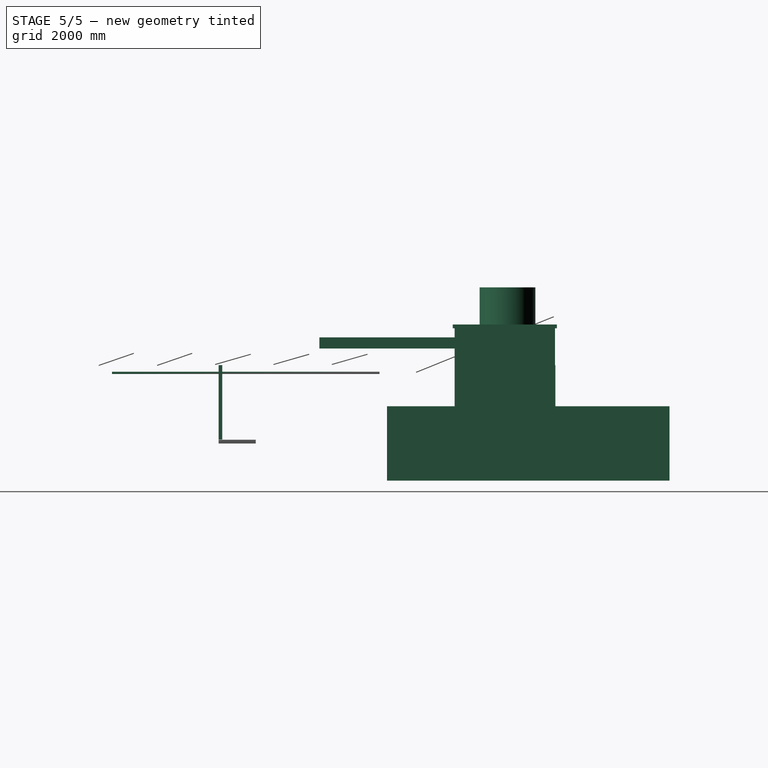
[diagram: stage 5 of 5 — right view after this stage's code; geometry added in this stage tinted green]
FEATURE [Sketcher::SketchObject] Sketch003
  Placement = pos=(6410.07,2968.84,100) rot=(0,0,1;0rad)
  sketch-geometry (8):
    g0: LineSegment StartX=0 StartY=0 StartZ=0 EndX=1000 EndY=0 EndZ=0
    g1: LineSegment StartX=1000 StartY=0 StartZ=0 EndX=1000 EndY=1000 EndZ=0
    g2: LineSegment StartX=1000 StartY=1000 StartZ=0 EndX=0 EndY=1000 EndZ=0
    g3: LineSegment StartX=0 StartY=1000 StartZ=0 EndX=0 EndY=0 EndZ=0
    g4: LineSegment StartX=50 StartY=50 StartZ=0 EndX=950 EndY=50 EndZ=0
    g5: LineSegment StartX=950 StartY=50 StartZ=0 EndX=950 EndY=950 EndZ=0
    g6: LineSegment StartX=950 StartY=950 StartZ=0 EndX=50 EndY=950 EndZ=0
    g7: LineSegment StartX=50 StartY=950 StartZ=0 EndX=50 EndY=50 EndZ=0
  constraints (23):
    c: Coincident(g0,g1)
    c: Coincident(g1,g2)
    c: Coincident(g2,g3)
    c: Coincident(g3,g0)
    c: Horizontal(g0)
    c: Horizontal(g2)
    c: Vertical(g1)
    c: Vertical(g3)
    c: Coincident(g4,g5)
    c: Coincident(g5,g6)
    c: Coincident(g6,g7)
    c: Coincident(g7,g4)
    c: Horizontal(g4)
    c: Horizontal(g6)
    c: Vertical(g5)
    c: Vertical(g7)
    c: DistanceY(g1) = 1000  'Height'
    c: DistanceX(g0) = 1000  'Width'
    c: DistanceY(g6,g2) = 50  'Frame1'
    c: DistanceX(g2,g6) = 50  'Frame2'
    c: DistanceX(g4,g0) = 50  'Frame3'
    c: DistanceY(g0,g4) = 50  'Frame4'
    c: Coincident(g0,g-1)
FEATURE [Part::FeaturePython] Window  # Arch/BIM object (typed FeaturePython)
  Area = 1000000
  Base = -> Sketch003
  Frame = 50
  Height = 1000
  HoleDepth = 0
  HoleWire = 0
  HorizontalArea = 0
  Hosts = -> [Structure]
  IfcRole = 160
  LouvreSpacing = 0
  LouvreWidth = 0
  MoveWithHost = true
  Normal = (0,0,-1)
  Opening = 0
  PerimeterLength = 0
  Preset = 1
  SymbolElevation = false
  SymbolPlan = false
  VerticalArea = 0
  Width = 1000
  WindowParts = OuterFrame | Frame | Wire0,Wire1 | 50.0+V | 0.00+V | Glass | Glass panel | Wire1 | 10.0 | 50.0+V
FEATURE [Sketcher::SketchObject] Sketch005
  ExternalGeometry = -> [Wall001]
  Placement = pos=(6410.07,2968.84,100) rot=(1,0,0;1.5708rad)
  sketch-geometry (8):
    g0: LineSegment StartX=-180.394 StartY=6.24788 StartZ=0 EndX=619.606 EndY=6.24788 EndZ=0
    g1: LineSegment StartX=619.606 StartY=6.24788 StartZ=0 EndX=619.606 EndY=2006.25 EndZ=0
    g2: LineSegment StartX=619.606 StartY=2006.25 StartZ=0 EndX=-180.394 EndY=2006.25 EndZ=0
    g3: LineSegment StartX=-180.394 StartY=2006.25 StartZ=0 EndX=-180.394 EndY=6.24788 EndZ=0
    g4: LineSegment StartX=-130.394 StartY=56.2479 StartZ=0 EndX=569.606 EndY=56.2479 EndZ=0
    g5: LineSegment StartX=569.606 StartY=56.2479 StartZ=0 EndX=569.606 EndY=1956.25 EndZ=0
    g6: LineSegment StartX=569.606 StartY=1956.25 StartZ=0 EndX=-130.394 EndY=1956.25 EndZ=0
    g7: LineSegment StartX=-130.394 StartY=1956.25 StartZ=0 EndX=-130.394 EndY=56.2479 EndZ=0
  constraints (22):
    c: Coincident(g0,g1)
    c: Coincident(g1,g2)
    c: Coincident(g2,g3)
    c: Coincident(g3,g0)
    c: Horizontal(g0)
    c: Horizontal(g2)
    c: Vertical(g1)
    c: Vertical(g3)
    c: Coincident(g4,g5)
    c: Coincident(g5,g6)
    c: Coincident(g6,g7)
    c: Coincident(g7,g4)
    c: Horizontal(g4)
    c: Horizontal(g6)
    c: Vertical(g5)
    c: Vertical(g7)
    c: DistanceY(g1) = 2000  'Height'
    c: DistanceX(g0) = 800  'Width'
    c: DistanceY(g6,g2) = 50  'Frame1'
    c: DistanceX(g2,g6) = 50  'Frame2'
    c: DistanceX(g4,g0) = 50  'Frame3'
    c: DistanceY(g0,g4) = 50  'Frame4'
FEATURE [Part::FeaturePython] Window001  # Arch/BIM object (typed FeaturePython)
  Area = 1000000
  Base = -> Sketch005
  Frame = 50
  Height = 1000
  HoleDepth = 1000
  HoleWire = 1
  HorizontalArea = 0
  Hosts = -> [Wall001]
  IfcRole = 160
  LouvreSpacing = 0
  LouvreWidth = 0
  MoveWithHost = true
  Normal = (0,1,-2e-16)
  Opening = 0
  PerimeterLength = 0
  Preset = 1
  SymbolElevation = false
  SymbolPlan = false
  VerticalArea = 0
  Width = 1000
  WindowParts = OuterFrame | Frame | Wire0,Wire1 | 50.0+V | 0.00+V | Glass | Louvre | Wire1 | 10.0 | 50.0+V
FEATURE [Part::FeaturePython] Structure005  label="Horizontal Strauss"  # Arch/BIM object (typed FeaturePython)
  Base = -> Sketch008
  FaceMaker = 0
  Height = 60
  HorizontalArea = 726800
  IfcRole = 0
  Length = 0
  MoveWithHost = false
  Nodes = (12) [(100,7300,1930),(140,7300,1930),(140,3530,1930),(100,3530,1930),(2980,7300,1930),(3020,7300,1930),(3020,100,1930),(2980,100,1930),(5900,7300,1930),+3 more]
  NodesOffset = 0
  Normal = (0,0,0)
  PerimeterLength = 0
  VerticalArea = 2194800
  Width = 40
FEATURE [Part::Mirroring] Part__Mirroring  label="Terrace001 (Mirror #1)"
  Base = (5025,7500,1599.5)
  Normal = (0,1,-1.19209e-07)
  Source = -> Component
FEATURE [Sketcher::SketchObject] Sketch010
  ExternalGeometry = -> [Wall001,Structure001]
  MapMode = 5
  Placement = pos=(0,5680,0) rot=(0,0.707107,0.707107;3.14159rad)
  Support = -> [Component]
  sketch-geometry (4):
    g0: LineSegment StartX=-5900 StartY=2653.15 StartZ=0 EndX=-6050 EndY=2653.15 EndZ=0
    g1: LineSegment StartX=-6050 StartY=2653.15 StartZ=0 EndX=-6050 EndY=2953.15 EndZ=0
    g2: LineSegment StartX=-6050 StartY=2953.15 StartZ=0 EndX=-5900 EndY=2953.15 EndZ=0
    g3: LineSegment StartX=-5900 StartY=2953.15 StartZ=0 EndX=-5900 EndY=2653.15 EndZ=0
  constraints (11):
    c: Coincident(g0,g1)
    c: Coincident(g1,g2)
    c: Coincident(g2,g3)
    c: Coincident(g3,g0)
    c: Horizontal(g0)
    c: Horizontal(g2)
    c: Vertical(g1)
    c: Vertical(g3)
    c: Distance(g1) = 300
    c: Distance(g0) = 150
    c: PointOnObject(g2,g-3)
FEATURE [Sketcher::SketchObject] Sketch012
  MapMode = 5
  Placement = pos=(5060,0,0) rot=(0.57735,0.57735,0.57735;2.0944rad)
  Support = -> [Array]
  sketch-geometry (1):
    g0: ArcOfCircle CenterX=2878.5 CenterY=2111.31 CenterZ=0 NormalX=0 NormalY=0 NormalZ=1 AngleXU=0 Radius=49.4701 StartAngle=3.13353 EndAngle=6.39806
FEATURE [Part::Extrusion] Extrude001
  Base = -> Sketch012
  Dir = (1,0,0)
  DirMode = 2
  FaceMakerClass = Part::FaceMakerBullseye
  LengthFwd = -6060
  LengthRev = 0
  Solid = false
  Symmetric = false
FEATURE [Part::FeaturePython] Array003  label="3 Water Trench"  # Draft array (typed FeaturePython)
  Angle = 360
  ArrayType = 0
  Axis = (0,0,1)
  Base = -> Extrude001
  Center = (0,0,0)
  Fuse = false
  IntervalAxis = (0,0,0)
  IntervalX = (0,0,0)
  IntervalY = (0,1570,0)
  IntervalZ = (0,0,1)
  NumberPolar = 1
  NumberX = 1
  NumberY = 3
  NumberZ = 1
FEATURE [Sketcher::SketchObject] Sketch013
  MapMode = 5
  Placement = pos=(6060,0,0) rot=(0.57735,0.57735,0.57735;2.0944rad)
  Support = -> [Array002]
  sketch-geometry (1):
    g0: ArcOfCircle CenterX=1320.6 CenterY=2082.05 CenterZ=0 NormalX=0 NormalY=0 NormalZ=1 AngleXU=0 Radius=57.4094 StartAngle=3.35269 EndAngle=6.43026
FEATURE [Part::Extrusion] Extrude003
  Base = -> Sketch013
  Dir = (1,0,0)
  DirMode = 2
  FaceMakerClass = Part::FaceMakerBullseye
  LengthFwd = -4030
  LengthRev = 0
  Solid = false
  Symmetric = false
FEATURE [Part::FeaturePython] Array004  label="2 Water Trench"  # Draft array (typed FeaturePython)
  Angle = 360
  ArrayType = 0
  Axis = (0,0,1)
  Base = -> Extrude003
  Center = (0,0,0)
  Fuse = false
  IntervalAxis = (0,0,0)
  IntervalX = (1,0,0)
  IntervalY = (0,-1570,0)
  IntervalZ = (0,0,1)
  NumberPolar = 1
  NumberX = 1
  NumberY = 2
  NumberZ = 1
FEATURE [App::GeometryPython] BuildingPart  label="Solar Installation"  # Arch/BIM object (typed FeaturePython)
  Area = 0
  BuildingType = 0
  Group = -> [Structure004,Array,Array002,Sketch008,Structure005,Structure008,Array004,Array003]
  Height = 0
  IfcRole = 11
  LevelOffset = 0
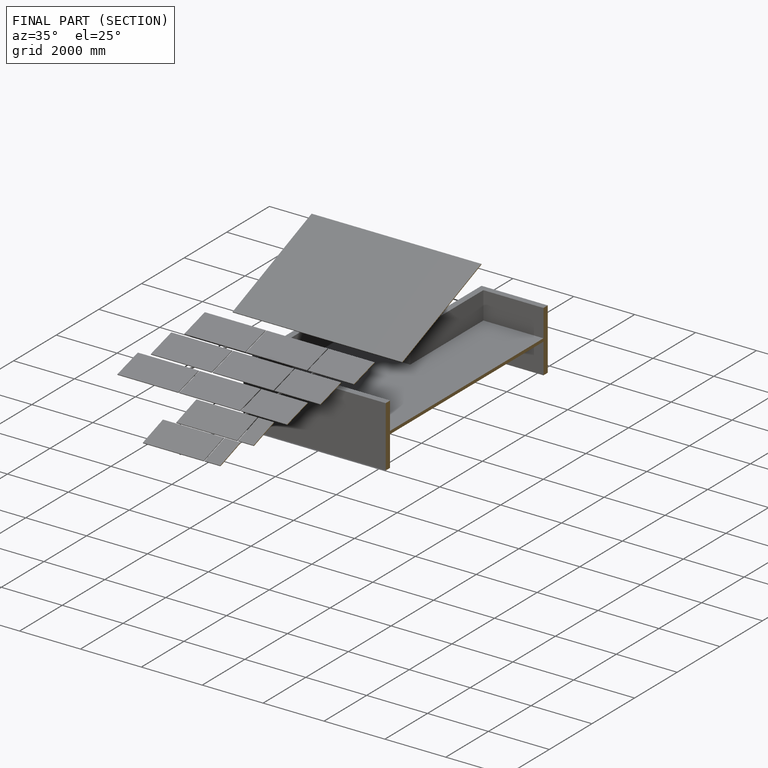
[diagram: finished part — half-section view (interior)]
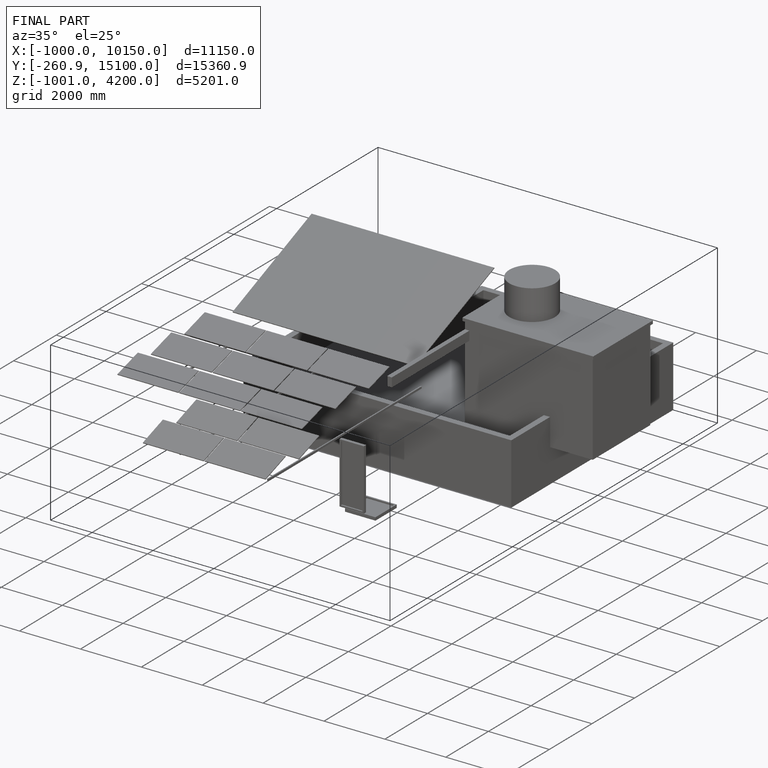
[diagram: finished part — iso view with bounding-box wireframe]
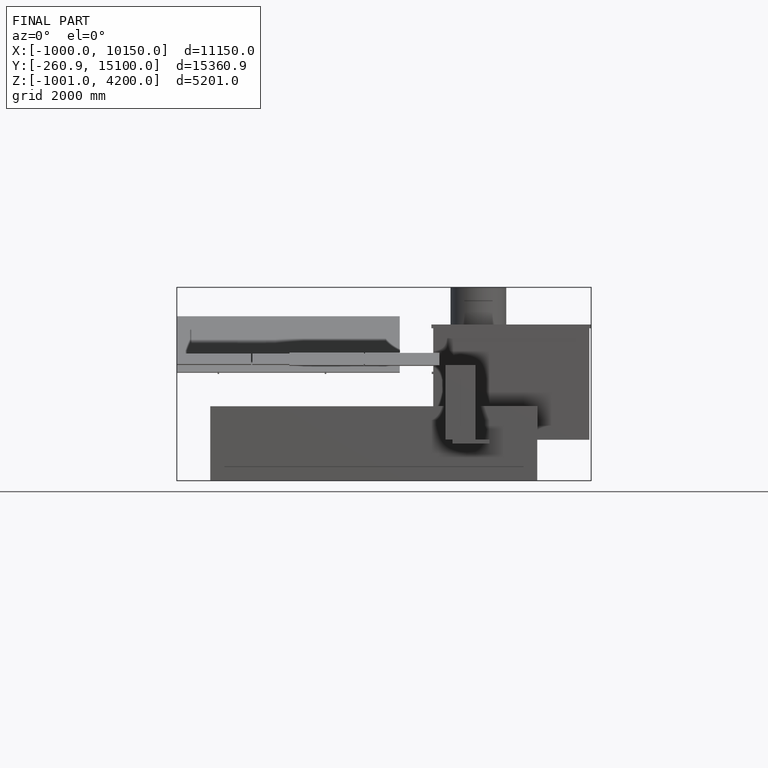
[diagram: finished part — front view with bounding-box wireframe]
